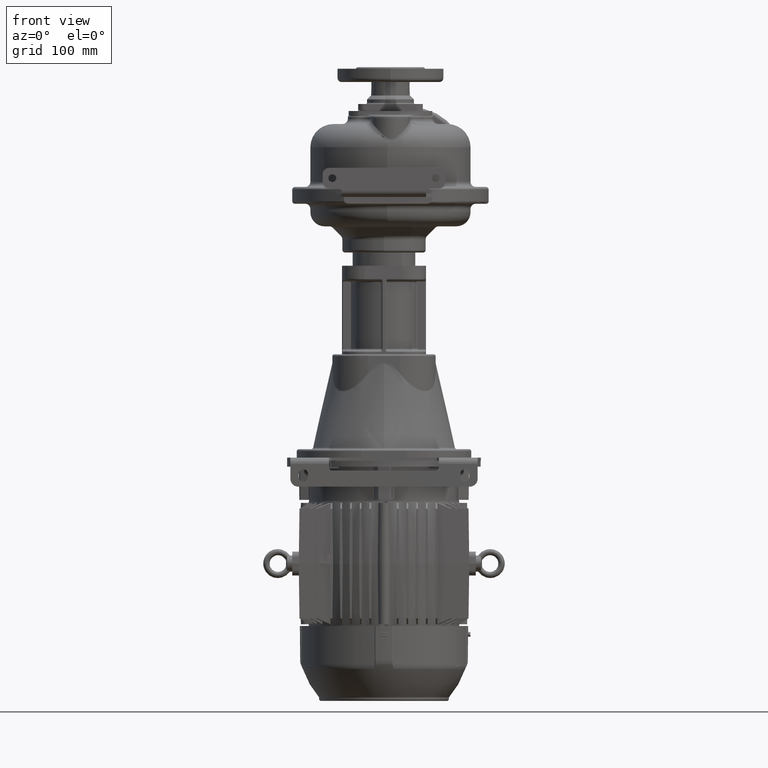
[diagram: clean part render]
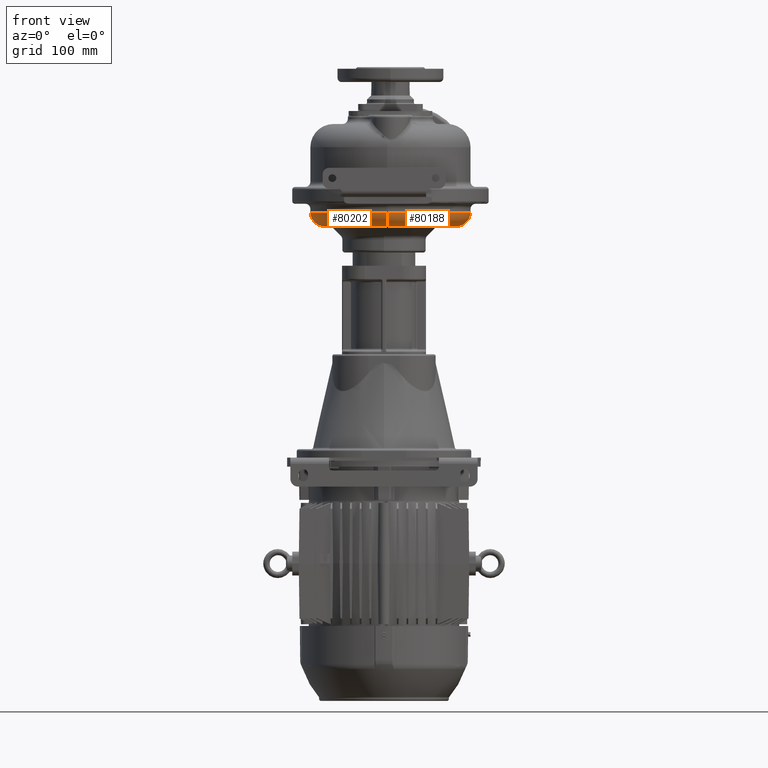
[diagram: same view with one multi-face feature highlighted, each face labeled with its STEP entity id]
A machine part, front view. The highlighted faces form ONE feature: a constant-radius fillet chain: 2 tangent blend faces with common blend radius 22 mm. The faces share edges in the B-rep.
Their STEP definitions:
[1] entity #80188 (Torus):
#23004=CARTESIAN_POINT('',(5.E0,1.65E2,-7.45E1));
#23005=DIRECTION('',(0.E0,0.E0,-1.E0));
#23006=DIRECTION('',(1.E0,0.E0,0.E0));
#23007=AXIS2_PLACEMENT_3D('',#23004,#23005,#23006);
#23254=CARTESIAN_POINT('',(1.12E2,1.65E2,-5.25E1));
#23255=DIRECTION('',(0.E0,-1.E0,0.E0));
#23256=DIRECTION('',(0.E0,0.E0,-1.E0));
#23257=AXIS2_PLACEMENT_3D('',#23254,#23255,#23256);
#23259=CARTESIAN_POINT('',(5.E0,5.8E1,-5.25E1));
#23260=DIRECTION('',(-1.E0,0.E0,0.E0));
#23261=DIRECTION('',(0.E0,0.E0,-1.E0));
#23262=AXIS2_PLACEMENT_3D('',#23259,#23260,#23261);
#28963=CARTESIAN_POINT('',(5.E0,1.65E2,-5.25E1));
#28964=DIRECTION('',(0.E0,0.E0,-1.E0));
#28965=DIRECTION('',(1.E0,0.E0,0.E0));
#28966=AXIS2_PLACEMENT_3D('',#28963,#28964,#28965);
#42094=CARTESIAN_POINT('',(1.12E2,1.65E2,-7.45E1));
#42095=VERTEX_POINT('',#42094);
#42096=CARTESIAN_POINT('',(1.34E2,1.65E2,-5.25E1));
#42097=VERTEX_POINT('',#42096);
#42098=CARTESIAN_POINT('',(5.E0,5.8E1,-7.45E1));
#42099=VERTEX_POINT('',#42098);
#42100=CARTESIAN_POINT('',(4.999999999999E0,3.6E1,-5.25E1));
#42101=VERTEX_POINT('',#42100);
#80175=CARTESIAN_POINT('',(5.E0,1.65E2,-5.25E1));
#80176=DIRECTION('',(0.E0,0.E0,-1.E0));
#80177=DIRECTION('',(9.999999928957E-1,1.191999997177E-4,0.E0));
#80178=AXIS2_PLACEMENT_3D('',#80175,#80176,#80177);
#80179=TOROIDAL_SURFACE('',#80178,1.07E2,2.2E1);
#80180=ORIENTED_EDGE('',*,*,#79705,.T.);
#80182=ORIENTED_EDGE('',*,*,#80181,.T.);
#80184=ORIENTED_EDGE('',*,*,#80183,.F.);
#80185=ORIENTED_EDGE('',*,*,#80167,.F.);
#80186=EDGE_LOOP('',(#80180,#80182,#80184,#80185));
#80187=FACE_OUTER_BOUND('',#80186,.F.);
#80188=ADVANCED_FACE('',(#80187),#80179,.T.);
#23008=CIRCLE('',#23007,1.07E2);
#23258=CIRCLE('',#23257,2.2E1);
#23263=CIRCLE('',#23262,2.2E1);
#28967=CIRCLE('',#28966,1.29E2);
#79705=EDGE_CURVE('',#42095,#42099,#23008,.T.);
#80167=EDGE_CURVE('',#42095,#42097,#23258,.T.);
#80181=EDGE_CURVE('',#42099,#42101,#23263,.T.);
#80183=EDGE_CURVE('',#42097,#42101,#28967,.T.);
[2] entity #80202 (Torus):
#22999=CARTESIAN_POINT('',(5.E0,1.55E2,-7.45E1));
#23000=DIRECTION('',(0.E0,0.E0,-1.E0));
#23001=DIRECTION('',(0.E0,-1.E0,0.E0));
#23002=AXIS2_PLACEMENT_3D('',#22999,#23000,#23001);
#23259=CARTESIAN_POINT('',(5.E0,5.8E1,-5.25E1));
#23260=DIRECTION('',(-1.E0,0.E0,0.E0));
#23261=DIRECTION('',(0.E0,0.E0,-1.E0));
#23262=AXIS2_PLACEMENT_3D('',#23259,#23260,#23261);
#23264=CARTESIAN_POINT('',(-9.2E1,1.55E2,-5.25E1));
#23265=DIRECTION('',(0.E0,1.E0,0.E0));
#23266=DIRECTION('',(0.E0,0.E0,-1.E0));
#23267=AXIS2_PLACEMENT_3D('',#23264,#23265,#23266);
#29049=CARTESIAN_POINT('',(5.E0,1.55E2,-5.25E1));
#29050=DIRECTION('',(0.E0,0.E0,-1.E0));
#29051=DIRECTION('',(0.E0,-1.E0,0.E0));
#29052=AXIS2_PLACEMENT_3D('',#29049,#29050,#29051);
#42098=CARTESIAN_POINT('',(5.E0,5.8E1,-7.45E1));
#42099=VERTEX_POINT('',#42098);
#42100=CARTESIAN_POINT('',(4.999999999999E0,3.6E1,-5.25E1));
#42101=VERTEX_POINT('',#42100);
#42102=CARTESIAN_POINT('',(-9.2E1,1.55E2,-7.45E1));
#42103=VERTEX_POINT('',#42102);
#42104=CARTESIAN_POINT('',(-1.14E2,1.55E2,-5.25E1));
#42105=VERTEX_POINT('',#42104);
#80189=CARTESIAN_POINT('',(5.E0,1.55E2,-5.25E1));
#80190=DIRECTION('',(0.E0,0.E0,-1.E0));
#80191=DIRECTION('',(1.292168063583E-4,-9.999999916515E-1,0.E0));
#80192=AXIS2_PLACEMENT_3D('',#80189,#80190,#80191);
#80193=TOROIDAL_SURFACE('',#80192,9.7E1,2.2E1);
#80194=ORIENTED_EDGE('',*,*,#79703,.T.);
#80196=ORIENTED_EDGE('',*,*,#80195,.T.);
#80198=ORIENTED_EDGE('',*,*,#80197,.F.);
#80199=ORIENTED_EDGE('',*,*,#80181,.F.);
#80200=EDGE_LOOP('',(#80194,#80196,#80198,#80199));
#80201=FACE_OUTER_BOUND('',#80200,.F.);
#80202=ADVANCED_FACE('',(#80201),#80193,.T.);
#23003=CIRCLE('',#23002,9.7E1);
#23263=CIRCLE('',#23262,2.2E1);
#23268=CIRCLE('',#23267,2.2E1);
#29053=CIRCLE('',#29052,1.19E2);
#79703=EDGE_CURVE('',#42099,#42103,#23003,.T.);
#80181=EDGE_CURVE('',#42099,#42101,#23263,.T.);
#80195=EDGE_CURVE('',#42103,#42105,#23268,.T.);
#80197=EDGE_CURVE('',#42101,#42105,#29053,.T.);